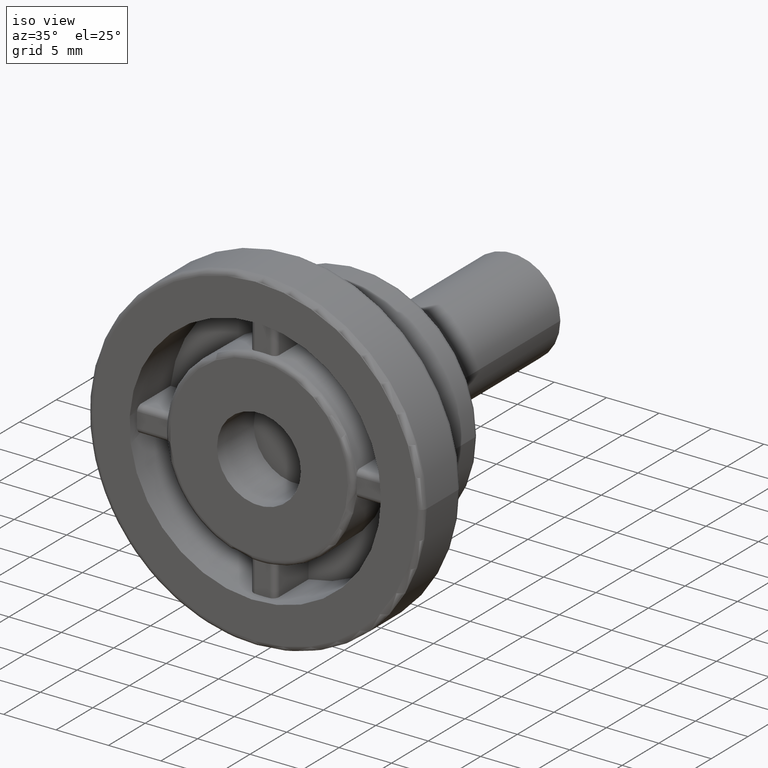
[diagram: clean part render]
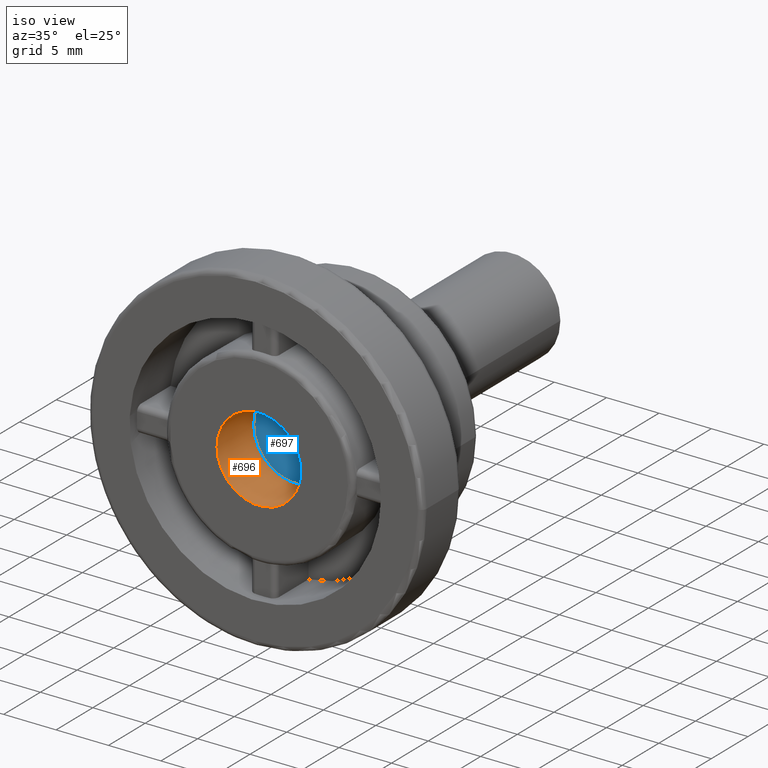
[diagram: same view with the hole feature highlighted: cylindrical wall and planar end face, labeled with their STEP entity ids]
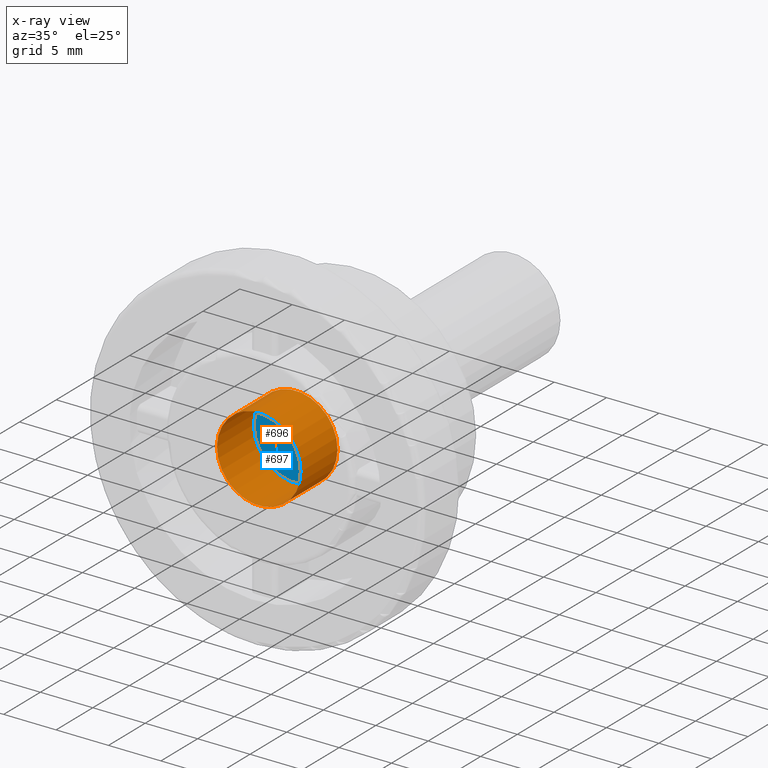
[diagram: x-ray of the same camera — body ghosted, the hole faces saturated]
A machine part, iso view. The highlighted faces form one hole feature of diameter 8 mm: the cylindrical wall (entity #696, orange) and its adjacent planar end face (entity #697, blue) — they share a circular edge in the B-rep.
The next image is the same camera in x-ray (body ghosted, the hole faces saturated) — the bore reads through the body.
Wall:
#27=FACE_BOUND('',#192,.T.);
#44=CIRCLE('',#738,4.);
#64=CIRCLE('',#777,4.);
#134=FACE_OUTER_BOUND('',#191,.T.);
#191=EDGE_LOOP('',(#604));
#192=EDGE_LOOP('',(#605));
#348=VERTEX_POINT('',#1276);
#359=VERTEX_POINT('',#1326);
#431=EDGE_CURVE('',#348,#348,#44,.T.);
#451=EDGE_CURVE('',#359,#359,#64,.T.);
#604=ORIENTED_EDGE('',*,*,#431,.F.);
#605=ORIENTED_EDGE('',*,*,#451,.T.);
#653=CYLINDRICAL_SURFACE('',#776,4.);
#696=ADVANCED_FACE('',(#134,#27),#653,.F.);
#738=AXIS2_PLACEMENT_3D('',#1277,#895,#896);
#776=AXIS2_PLACEMENT_3D('',#1325,#971,#972);
#777=AXIS2_PLACEMENT_3D('',#1327,#973,#974);
#895=DIRECTION('center_axis',(-6.34413156928661E-17,1.,0.));
#896=DIRECTION('ref_axis',(-1.,-1.00929365875014E-16,0.));
#971=DIRECTION('center_axis',(-1.00929365875014E-16,1.,0.));
#972=DIRECTION('ref_axis',(-1.,-1.00929365875014E-16,0.));
#973=DIRECTION('center_axis',(-6.34413156928661E-17,1.,0.));
#974=DIRECTION('ref_axis',(-1.,-6.34413156928661E-17,0.));
#1276=CARTESIAN_POINT('',(4.,0.5,-4.89858719658941E-16));
#1277=CARTESIAN_POINT('Origin',(-5.04646829375071E-17,0.5,0.));
#1325=CARTESIAN_POINT('Origin',(0.,0.,0.));
#1326=CARTESIAN_POINT('',(4.,5.5,4.89858719658941E-16));
#1327=CARTESIAN_POINT('Origin',(-5.55111512312578E-16,5.5,0.));
End face:
#64=CIRCLE('',#777,4.);
#92=PLANE('',#778);
#135=FACE_OUTER_BOUND('',#193,.T.);
#193=EDGE_LOOP('',(#606));
#359=VERTEX_POINT('',#1326);
#451=EDGE_CURVE('',#359,#359,#64,.T.);
#606=ORIENTED_EDGE('',*,*,#451,.F.);
#697=ADVANCED_FACE('',(#135),#92,.T.);
#777=AXIS2_PLACEMENT_3D('',#1327,#973,#974);
#778=AXIS2_PLACEMENT_3D('',#1328,#975,#976);
#973=DIRECTION('center_axis',(-6.34413156928661E-17,1.,0.));
#974=DIRECTION('ref_axis',(-1.,-6.34413156928661E-17,0.));
#975=DIRECTION('center_axis',(6.34413156928661E-17,-1.,0.));
#976=DIRECTION('ref_axis',(0.,0.,-1.));
#1326=CARTESIAN_POINT('',(4.,5.5,4.89858719658941E-16));
#1327=CARTESIAN_POINT('Origin',(-5.55111512312578E-16,5.5,0.));
#1328=CARTESIAN_POINT('Origin',(-8.27229535747731E-16,5.5,0.));